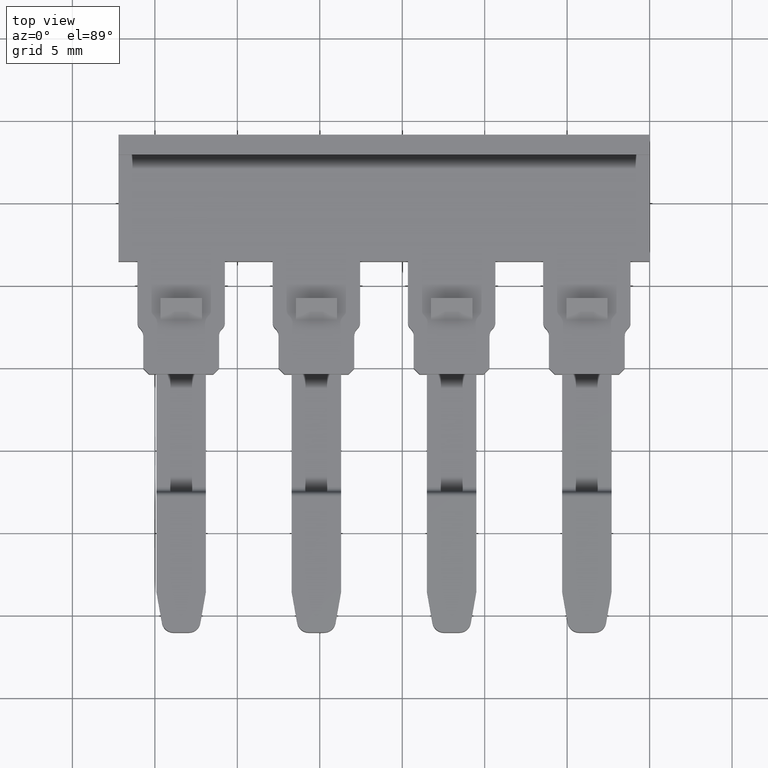
[diagram: clean part render]
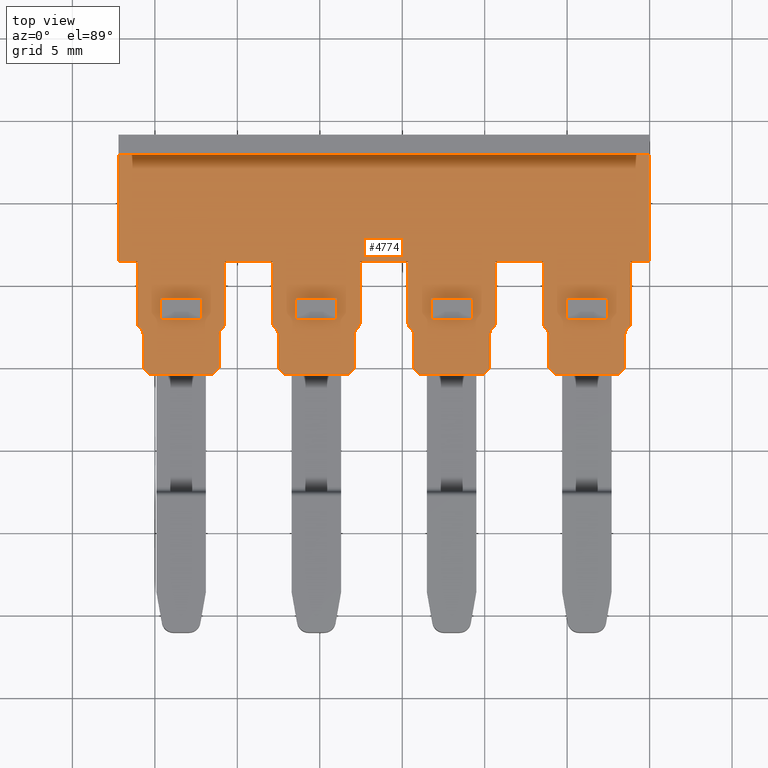
[diagram: same view with one face highlighted and labeled with its STEP entity id]
A machine part, top view. The second image highlights one B-rep face of the part: STEP entity #4774.
In plain terms, the highlighted planar face has unit normal (0, 0, 1).
Its self-contained STEP definition (entity closure, byte-faithful):
#4 = VERTEX_POINT ( 'NONE', #447 ) ;
#7 = VERTEX_POINT ( 'NONE', #437 ) ;
#8 = VERTEX_POINT ( 'NONE', #439 ) ;
#9 = VERTEX_POINT ( 'NONE', #430 ) ;
#10 = VERTEX_POINT ( 'NONE', #388 ) ;
#11 = VERTEX_POINT ( 'NONE', #433 ) ;
#14 = VERTEX_POINT ( 'NONE', #448 ) ;
#17 = VERTEX_POINT ( 'NONE', #440 ) ;
#18 = VERTEX_POINT ( 'NONE', #490 ) ;
#21 = VERTEX_POINT ( 'NONE', #505 ) ;
#22 = VERTEX_POINT ( 'NONE', #482 ) ;
#25 = VERTEX_POINT ( 'NONE', #471 ) ;
#27 = VERTEX_POINT ( 'NONE', #500 ) ;
#28 = VERTEX_POINT ( 'NONE', #466 ) ;
#29 = VERTEX_POINT ( 'NONE', #514 ) ;
#31 = VERTEX_POINT ( 'NONE', #455 ) ;
#32 = VERTEX_POINT ( 'NONE', #486 ) ;
#33 = VERTEX_POINT ( 'NONE', #464 ) ;
#35 = VERTEX_POINT ( 'NONE', #496 ) ;
#36 = VERTEX_POINT ( 'NONE', #487 ) ;
#37 = VERTEX_POINT ( 'NONE', #509 ) ;
#39 = VERTEX_POINT ( 'NONE', #497 ) ;
#40 = VERTEX_POINT ( 'NONE', #475 ) ;
#44 = VERTEX_POINT ( 'NONE', #510 ) ;
#45 = VERTEX_POINT ( 'NONE', #474 ) ;
#46 = VERTEX_POINT ( 'NONE', #507 ) ;
#47 = VERTEX_POINT ( 'NONE', #498 ) ;
#52 = VERTEX_POINT ( 'NONE', #467 ) ;
#53 = VERTEX_POINT ( 'NONE', #457 ) ;
#58 = VERTEX_POINT ( 'NONE', #493 ) ;
#59 = VERTEX_POINT ( 'NONE', #472 ) ;
#61 = VERTEX_POINT ( 'NONE', #488 ) ;
#62 = VERTEX_POINT ( 'NONE', #459 ) ;
#63 = VERTEX_POINT ( 'NONE', #454 ) ;
#65 = VERTEX_POINT ( 'NONE', #489 ) ;
#78 = VERTEX_POINT ( 'NONE', #515 ) ;
#117 = VERTEX_POINT ( 'NONE', #523 ) ;
#280 = EDGE_LOOP ( 'NONE', ( #3942, #3907, #3911, #3933 ) ) ;
#281 = EDGE_LOOP ( 'NONE', ( #3958, #3922, #3919, #3934 ) ) ;
#284 = EDGE_LOOP ( 'NONE', ( #3928, #3902, #3948, #3945 ) ) ;
#290 = EDGE_LOOP ( 'NONE', ( #3930, #3918, #3905, #3943 ) ) ;
#303 = EDGE_LOOP ( 'NONE', ( #3854, #3839, #3832, #3860, #3869, #3887, #3890, #3880, #3834, #3889, #3863, #3898, #3871, #3891, #3916, #3847, #3870, #3914, #3857, #3842, #3954, #3852, #3864, #3883, #3848, #3862, #3949, #3874, #3845, #3851, #3856, #3882, #3892, #3855, #3835, #3877, #3831, #3881, #3895, #3947, #3920, #3940, #3901, #3955, #3950, #3924, #3946, #3932, #3917, #3956, #3910, #3899, #3909, #3937, #3896, #3953, #3926, #3925, #3931, #3906 ) ) ;
#388 = CARTESIAN_POINT ( 'NONE',  ( 1153.494474435155100, 661.9736494821041800, 3.000000000000000000 ) ) ;
#430 = CARTESIAN_POINT ( 'NONE',  ( 1149.944467917465300, 664.2078760720547700, 3.000000000000000000 ) ) ;
#433 = CARTESIAN_POINT ( 'NONE',  ( 1149.944467917465300, 662.9078760720548200, 3.000000000000000400 ) ) ;
#437 = CARTESIAN_POINT ( 'NONE',  ( 1129.040915542681200, 662.3272031070188200, 3.000000000000000000 ) ) ;
#439 = CARTESIAN_POINT ( 'NONE',  ( 1153.640922579462800, 662.3272035023839000, 3.000000000000000000 ) ) ;
#440 = CARTESIAN_POINT ( 'NONE',  ( 1128.894469738309200, 661.9736498846202700, 3.000000000000000000 ) ) ;
#447 = CARTESIAN_POINT ( 'NONE',  ( 1136.044467917465200, 664.2078760720547700, 3.000000000000000000 ) ) ;
#448 = CARTESIAN_POINT ( 'NONE',  ( 1136.044467917465200, 662.9078760720548200, 3.000000000000000000 ) ) ;
#454 = CARTESIAN_POINT ( 'NONE',  ( 1141.744467917465300, 662.9078760720548200, 3.000000000000000400 ) ) ;
#455 = CARTESIAN_POINT ( 'NONE',  ( 1145.498019600217000, 662.3843103491215100, 3.000000000000000000 ) ) ;
#457 = CARTESIAN_POINT ( 'NONE',  ( 1124.148017319408400, 662.3272083212701800, 3.000000000000000000 ) ) ;
#459 = CARTESIAN_POINT ( 'NONE',  ( 1124.644464850728400, 659.6092820011524500, 3.000000000000000000 ) ) ;
#464 = CARTESIAN_POINT ( 'NONE',  ( 1153.698026633855800, 662.3843060446221200, 3.000000000000000000 ) ) ;
#466 = CARTESIAN_POINT ( 'NONE',  ( 1154.994472239529600, 666.4412575163982000, 3.000000000000000000 ) ) ;
#467 = CARTESIAN_POINT ( 'NONE',  ( 1152.444467917465300, 662.9078760720548200, 3.000000000000000400 ) ) ;
#471 = CARTESIAN_POINT ( 'NONE',  ( 1153.494474435155100, 659.9592804752735400, 3.000000000000000400 ) ) ;
#472 = CARTESIAN_POINT ( 'NONE',  ( 1153.844475124394400, 662.7378658222389700, 3.000000000000000000 ) ) ;
#474 = CARTESIAN_POINT ( 'NONE',  ( 1133.544467917465200, 664.2078760720547700, 3.000000000000000000 ) ) ;
#475 = CARTESIAN_POINT ( 'NONE',  ( 1125.344467917465400, 662.9078760720548200, 3.000000000000000400 ) ) ;
#482 = CARTESIAN_POINT ( 'NONE',  ( 1141.744467917465300, 664.2078760720547700, 3.000000000000000000 ) ) ;
#486 = CARTESIAN_POINT ( 'NONE',  ( 1124.294467228829700, 659.9592796230510900, 3.000000000000000400 ) ) ;
#487 = CARTESIAN_POINT ( 'NONE',  ( 1123.944467917465300, 666.4412584401425200, 3.000000000000000400 ) ) ;
#488 = CARTESIAN_POINT ( 'NONE',  ( 1127.844467917465200, 662.9078760720548200, 3.000000000000000000 ) ) ;
#489 = CARTESIAN_POINT ( 'NONE',  ( 1127.844467917465200, 664.2078760720547700, 3.000000000000000000 ) ) ;
#490 = CARTESIAN_POINT ( 'NONE',  ( 1129.098019600217200, 662.3843103491215100, 3.000000000000000000 ) ) ;
#493 = CARTESIAN_POINT ( 'NONE',  ( 1144.244467917465300, 662.9078760720548200, 3.000000000000000000 ) ) ;
#496 = CARTESIAN_POINT ( 'NONE',  ( 1144.244467917465300, 664.2078760720547700, 3.000000000000000000 ) ) ;
#497 = CARTESIAN_POINT ( 'NONE',  ( 1129.244466905616000, 662.7378672810804100, 3.000000000000000000 ) ) ;
#498 = CARTESIAN_POINT ( 'NONE',  ( 1124.090916895879000, 662.3843073119102200, 3.000000000000000000 ) ) ;
#500 = CARTESIAN_POINT ( 'NONE',  ( 1145.644466905616100, 662.7378672810804100, 3.000000000000000000 ) ) ;
#505 = CARTESIAN_POINT ( 'NONE',  ( 1133.544467917465200, 662.9078760720548200, 3.000000000000000400 ) ) ;
#507 = CARTESIAN_POINT ( 'NONE',  ( 1128.894469738309200, 659.9592804752735400, 3.000000000000000400 ) ) ;
#509 = CARTESIAN_POINT ( 'NONE',  ( 1132.348017319408200, 662.3272083212701800, 3.000000000000000000 ) ) ;
#510 = CARTESIAN_POINT ( 'NONE',  ( 1153.844475124394400, 666.4412575163982000, 3.000000000000000400 ) ) ;
#514 = CARTESIAN_POINT ( 'NONE',  ( 1124.294468933274200, 661.9736493991215400, 3.000000000000000000 ) ) ;
#515 = CARTESIAN_POINT ( 'NONE',  ( 1123.944467917441200, 662.7378632849956800, 3.000000000000000000 ) ) ;
#523 = CARTESIAN_POINT ( 'NONE',  ( 1125.344467917465400, 664.2078760720547700, 3.000000000000000000 ) ) ;
#646 = CARTESIAN_POINT ( 'NONE',  ( 1136.744471264188200, 659.6092820011524500, 3.000000000000000000 ) ) ;
#649 = CARTESIAN_POINT ( 'NONE',  ( 1145.294469738309100, 659.9592804752735400, 3.000000000000000400 ) ) ;
#650 = CARTESIAN_POINT ( 'NONE',  ( 1132.144467917441300, 662.7378632849956800, 3.000000000000000000 ) ) ;
#651 = CARTESIAN_POINT ( 'NONE',  ( 1122.794470802330100, 666.4412584401425200, 3.000000000000000000 ) ) ;
#654 = CARTESIAN_POINT ( 'NONE',  ( 1141.044464850728200, 659.6092820011524500, 3.000000000000000000 ) ) ;
#661 = CARTESIAN_POINT ( 'NONE',  ( 1140.344467917465200, 666.4412584401425200, 3.000000000000000000 ) ) ;
#662 = CARTESIAN_POINT ( 'NONE',  ( 1148.544472599332000, 666.4412584401425200, 3.000000000000000400 ) ) ;
#686 = CARTESIAN_POINT ( 'NONE',  ( 1132.144467917465400, 666.4412584401425200, 3.000000000000000400 ) ) ;
#693 = CARTESIAN_POINT ( 'NONE',  ( 1145.440915542681300, 662.3272031070188200, 3.000000000000000000 ) ) ;
#694 = CARTESIAN_POINT ( 'NONE',  ( 1152.444467917465300, 664.2078760720547700, 3.000000000000000400 ) ) ;
#695 = CARTESIAN_POINT ( 'NONE',  ( 1137.444466905616100, 666.4412584401425200, 3.000000000000000400 ) ) ;
#696 = CARTESIAN_POINT ( 'NONE',  ( 1149.244469547574200, 659.6092820011524500, 3.000000000000000000 ) ) ;
#697 = CARTESIAN_POINT ( 'NONE',  ( 1145.644466905616100, 666.4412584401425200, 3.000000000000000400 ) ) ;
#709 = CARTESIAN_POINT ( 'NONE',  ( 1153.144475961034000, 659.6092820011524500, 3.000000000000000000 ) ) ;
#712 = CARTESIAN_POINT ( 'NONE',  ( 1140.694468933274000, 661.9736493991215400, 3.000000000000000000 ) ) ;
#713 = CARTESIAN_POINT ( 'NONE',  ( 1137.240915542681300, 662.3272031070188200, 3.000000000000000000 ) ) ;
#717 = CARTESIAN_POINT ( 'NONE',  ( 1148.544465751977200, 662.7378609136880000, 3.000000000000000000 ) ) ;
#718 = CARTESIAN_POINT ( 'NONE',  ( 1140.490916895879100, 662.3843073119102200, 3.000000000000000000 ) ) ;
#721 = CARTESIAN_POINT ( 'NONE',  ( 1144.944471264188000, 659.6092820011524500, 3.000000000000000000 ) ) ;
#723 = CARTESIAN_POINT ( 'NONE',  ( 1140.694467228829800, 659.9592796230510900, 3.000000000000000400 ) ) ;
#724 = CARTESIAN_POINT ( 'NONE',  ( 1137.298019600217200, 662.3843103491215100, 3.000000000000000000 ) ) ;
#725 = CARTESIAN_POINT ( 'NONE',  ( 1128.544471264188100, 659.6092820011524500, 3.000000000000000000 ) ) ;
#728 = CARTESIAN_POINT ( 'NONE',  ( 1145.294469738309100, 661.9736498846202700, 3.000000000000000000 ) ) ;
#731 = CARTESIAN_POINT ( 'NONE',  ( 1154.994472239529600, 672.9078760720548200, 3.000000000000000000 ) ) ;
#734 = CARTESIAN_POINT ( 'NONE',  ( 1132.494468933274000, 661.9736493991215400, 3.000000000000000000 ) ) ;
#737 = CARTESIAN_POINT ( 'NONE',  ( 1129.244466905616000, 666.4412584401425200, 3.000000000000000400 ) ) ;
#738 = CARTESIAN_POINT ( 'NONE',  ( 1122.794470802330100, 672.9078760720548200, 3.000000000000000000 ) ) ;
#739 = CARTESIAN_POINT ( 'NONE',  ( 1132.494467228829800, 659.9592796230510900, 3.000000000000000400 ) ) ;
#741 = CARTESIAN_POINT ( 'NONE',  ( 1148.894470360060500, 659.9592811886663000, 3.000000000000000400 ) ) ;
#744 = CARTESIAN_POINT ( 'NONE',  ( 1148.690911843030100, 662.3843083557416100, 3.000000000000000000 ) ) ;
#745 = CARTESIAN_POINT ( 'NONE',  ( 1137.444466905616100, 662.7378672810804100, 3.000000000000000000 ) ) ;
#746 = CARTESIAN_POINT ( 'NONE',  ( 1148.894468933274300, 661.9736499820405700, 3.000000000000000000 ) ) ;
#749 = CARTESIAN_POINT ( 'NONE',  ( 1137.094469738309300, 659.9592804752735400, 3.000000000000000400 ) ) ;
#751 = CARTESIAN_POINT ( 'NONE',  ( 1140.548017319408200, 662.3272083212701800, 3.000000000000000000 ) ) ;
#752 = CARTESIAN_POINT ( 'NONE',  ( 1132.844464850728400, 659.6092820011524500, 3.000000000000000000 ) ) ;
#753 = CARTESIAN_POINT ( 'NONE',  ( 1132.290916895879000, 662.3843073119102200, 3.000000000000000000 ) ) ;
#754 = CARTESIAN_POINT ( 'NONE',  ( 1140.344467917441300, 662.7378632849956800, 3.000000000000000000 ) ) ;
#755 = CARTESIAN_POINT ( 'NONE',  ( 1148.748018761588600, 662.3272075669629000, 3.000000000000000000 ) ) ;
#762 = CARTESIAN_POINT ( 'NONE',  ( 1137.094469738309300, 661.9736498846202700, 3.000000000000000000 ) ) ;
#968 = PLANE ( 'NONE',  #4233 ) ;
#982 = DIRECTION ( 'NONE',  ( 1.000000000000000000, 0.0000000000000000000, -0.0000000000000000000 ) ) ;
#994 = FACE_BOUND ( 'NONE', #281, .T. ) ;
#997 = FACE_BOUND ( 'NONE', #280, .T. ) ;
#998 = CARTESIAN_POINT ( 'NONE',  ( 1136.944468391975100, 662.7578638201010800, 3.000000000000000000 ) ) ;
#1004 = FACE_OUTER_BOUND ( 'NONE', #303, .T. ) ;
#1005 = FACE_BOUND ( 'NONE', #290, .T. ) ;
#1009 = FACE_BOUND ( 'NONE', #284, .T. ) ;
#1017 = DIRECTION ( 'NONE',  ( 0.0000000000000000000, 0.0000000000000000000, 1.000000000000000000 ) ) ;
#1236 = VERTEX_POINT ( 'NONE', #650 ) ;
#1237 = VERTEX_POINT ( 'NONE', #686 ) ;
#1238 = VERTEX_POINT ( 'NONE', #694 ) ;
#1239 = VERTEX_POINT ( 'NONE', #649 ) ;
#1241 = VERTEX_POINT ( 'NONE', #693 ) ;
#1242 = VERTEX_POINT ( 'NONE', #695 ) ;
#1243 = VERTEX_POINT ( 'NONE', #696 ) ;
#1244 = VERTEX_POINT ( 'NONE', #697 ) ;
#1246 = VERTEX_POINT ( 'NONE', #646 ) ;
#1247 = VERTEX_POINT ( 'NONE', #654 ) ;
#1248 = VERTEX_POINT ( 'NONE', #661 ) ;
#1249 = VERTEX_POINT ( 'NONE', #651 ) ;
#1250 = VERTEX_POINT ( 'NONE', #662 ) ;
#1252 = VERTEX_POINT ( 'NONE', #751 ) ;
#1253 = VERTEX_POINT ( 'NONE', #762 ) ;
#1255 = VERTEX_POINT ( 'NONE', #755 ) ;
#1256 = VERTEX_POINT ( 'NONE', #709 ) ;
#1261 = VERTEX_POINT ( 'NONE', #721 ) ;
#1264 = VERTEX_POINT ( 'NONE', #738 ) ;
#1265 = VERTEX_POINT ( 'NONE', #728 ) ;
#1266 = VERTEX_POINT ( 'NONE', #717 ) ;
#1267 = VERTEX_POINT ( 'NONE', #724 ) ;
#1268 = VERTEX_POINT ( 'NONE', #754 ) ;
#1269 = VERTEX_POINT ( 'NONE', #718 ) ;
#1270 = VERTEX_POINT ( 'NONE', #712 ) ;
#1271 = VERTEX_POINT ( 'NONE', #734 ) ;
#1272 = VERTEX_POINT ( 'NONE', #737 ) ;
#1273 = VERTEX_POINT ( 'NONE', #741 ) ;
#1277 = VERTEX_POINT ( 'NONE', #746 ) ;
#1279 = VERTEX_POINT ( 'NONE', #731 ) ;
#1283 = VERTEX_POINT ( 'NONE', #744 ) ;
#1285 = VERTEX_POINT ( 'NONE', #749 ) ;
#1286 = VERTEX_POINT ( 'NONE', #752 ) ;
#1287 = VERTEX_POINT ( 'NONE', #723 ) ;
#1288 = VERTEX_POINT ( 'NONE', #745 ) ;
#1289 = VERTEX_POINT ( 'NONE', #725 ) ;
#1290 = VERTEX_POINT ( 'NONE', #713 ) ;
#1292 = VERTEX_POINT ( 'NONE', #739 ) ;
#1294 = VERTEX_POINT ( 'NONE', #753 ) ;
#2374 = DIRECTION ( 'NONE',  ( 0.7071067811865474600, -0.7071067811865474600, 0.0000000000000000000 ) ) ;
#2375 = CARTESIAN_POINT ( 'NONE',  ( 1140.694466376607100, 659.9592804752735400, 3.000000000000000000 ) ) ;
#2378 = CARTESIAN_POINT ( 'NONE',  ( 1136.944468391975100, 672.9078760720548200, 3.000000000000000000 ) ) ;
#2383 = DIRECTION ( 'NONE',  ( -1.000000000000000000, -0.0000000000000000000, 0.0000000000000000000 ) ) ;
#2406 = LINE ( 'NONE', #2378, #4154 ) ;
#2408 = LINE ( 'NONE', #2418, #4157 ) ;
#2415 = DIRECTION ( 'NONE',  ( 0.7071067811865474600, -0.7071067811865474600, 0.0000000000000000000 ) ) ;
#2418 = CARTESIAN_POINT ( 'NONE',  ( 1132.494466376607300, 659.9592804752735400, 3.000000000000000000 ) ) ;
#2419 = LINE ( 'NONE', #2375, #4260 ) ;
#2526 = CARTESIAN_POINT ( 'NONE',  ( 1132.290914677786500, 662.3843095299471300, 3.000000000000000000 ) ) ;
#2549 = CARTESIAN_POINT ( 'NONE',  ( 1137.444466905616100, 662.7578707420599400, 3.000000000000000000 ) ) ;
#2551 = CARTESIAN_POINT ( 'NONE',  ( 1131.994468426628400, 661.9736497164254800, 3.000000000000000000 ) ) ;
#2555 = LINE ( 'NONE', #2570, #4346 ) ;
#2562 = DIRECTION ( 'NONE',  ( 0.0000000000000000000, 1.000000000000000000, -0.0000000000000000000 ) ) ;
#2563 = LINE ( 'NONE', #2526, #4329 ) ;
#2564 = DIRECTION ( 'NONE',  ( -1.000000000000000000, 0.0000000000000000000, 0.0000000000000000000 ) ) ;
#2565 = DIRECTION ( 'NONE',  ( -0.0000000000000000000, -0.0000000000000000000, -1.000000000000000000 ) ) ;
#2570 = CARTESIAN_POINT ( 'NONE',  ( 1158.234848447492800, 659.6092820011524500, 3.000000000000000000 ) ) ;
#2571 = LINE ( 'NONE', #2549, #4253 ) ;
#2574 = DIRECTION ( 'NONE',  ( -1.000000000000000000, -1.259332280444392000E-037, -2.956436511251547900E-061 ) ) ;
#2578 = LINE ( 'NONE', #2603, #4343 ) ;
#2582 = DIRECTION ( 'NONE',  ( -1.000000000000000000, 0.0000000000000000000, 0.0000000000000000000 ) ) ;
#2595 = CARTESIAN_POINT ( 'NONE',  ( 1140.844468432835100, 662.7378632849956800, 3.000000000000000000 ) ) ;
#2603 = CARTESIAN_POINT ( 'NONE',  ( 1145.440915542681300, 662.3272031070188200, 3.000000000000000000 ) ) ;
#2605 = DIRECTION ( 'NONE',  ( 0.0000000000000000000, 0.0000000000000000000, 1.000000000000000000 ) ) ;
#2608 = DIRECTION ( 'NONE',  ( 0.7071156533801817900, -0.7070979088815909600, -0.0000000000000000000 ) ) ;
#2619 = DIRECTION ( 'NONE',  ( 0.7070870645724811600, 0.7071264972508609600, -0.0000000000000000000 ) ) ;
#2648 = CARTESIAN_POINT ( 'NONE',  ( 1140.344472599332200, 666.4412584401425200, 3.000000000000000000 ) ) ;
#2652 = CARTESIAN_POINT ( 'NONE',  ( 1122.794470802330100, 666.4412584401425200, 3.000000000000000000 ) ) ;
#2654 = DIRECTION ( 'NONE',  ( -0.0000000000000000000, -1.000000000000000000, -0.0000000000000000000 ) ) ;
#2659 = LINE ( 'NONE', #2676, #4368 ) ;
#2661 = DIRECTION ( 'NONE',  ( -0.0000000000000000000, -1.000000000000000000, -0.0000000000000000000 ) ) ;
#2664 = DIRECTION ( 'NONE',  ( 1.000000000000000000, 0.0000000000000000000, -0.0000000000000000000 ) ) ;
#2665 = LINE ( 'NONE', #2670, #4366 ) ;
#2666 = LINE ( 'NONE', #2652, #4359 ) ;
#2670 = CARTESIAN_POINT ( 'NONE',  ( 1124.090914677786500, 662.3843095299471300, 3.000000000000000000 ) ) ;
#2674 = LINE ( 'NONE', #2648, #4312 ) ;
#2676 = CARTESIAN_POINT ( 'NONE',  ( 1125.344467917465400, 662.9078760720548200, 3.000000000000000400 ) ) ;
#2677 = DIRECTION ( 'NONE',  ( 0.7071156533801817900, -0.7070979088815909600, -0.0000000000000000000 ) ) ;
#2678 = LINE ( 'NONE', #2681, #4341 ) ;
#2679 = DIRECTION ( 'NONE',  ( 0.7071156533801817900, -0.7070979088815909600, -0.0000000000000000000 ) ) ;
#2680 = DIRECTION ( 'NONE',  ( -1.000000000000000000, 0.0000000000000000000, 0.0000000000000000000 ) ) ;
#2681 = CARTESIAN_POINT ( 'NONE',  ( 1136.744471264188200, 659.6092820011524500, 3.000000000000000000 ) ) ;
#2682 = CARTESIAN_POINT ( 'NONE',  ( 1129.040915542681200, 662.3272031070188200, 3.000000000000000000 ) ) ;
#2684 = DIRECTION ( 'NONE',  ( -0.0000000000000000000, -1.000000000000000000, -0.0000000000000000000 ) ) ;
#2686 = CARTESIAN_POINT ( 'NONE',  ( 1152.444467917465300, 664.2078760720547700, 3.000000000000000400 ) ) ;
#2688 = LINE ( 'NONE', #2702, #4377 ) ;
#2691 = DIRECTION ( 'NONE',  ( -1.000000000000000000, 0.0000000000000000000, 0.0000000000000000000 ) ) ;
#2692 = LINE ( 'NONE', #2708, #4370 ) ;
#2693 = LINE ( 'NONE', #2696, #4420 ) ;
#2694 = DIRECTION ( 'NONE',  ( -1.000000000000000000, 0.0000000000000000000, 0.0000000000000000000 ) ) ;
#2695 = DIRECTION ( 'NONE',  ( -0.0000000000000000000, -0.0000000000000000000, -1.000000000000000000 ) ) ;
#2696 = CARTESIAN_POINT ( 'NONE',  ( 1136.944468391975100, 666.4412584401425200, 3.000000000000000000 ) ) ;
#2697 = LINE ( 'NONE', #2706, #4320 ) ;
#2698 = LINE ( 'NONE', #2718, #4378 ) ;
#2699 = LINE ( 'NONE', #2682, #4340 ) ;
#2701 = LINE ( 'NONE', #2686, #4355 ) ;
#2702 = CARTESIAN_POINT ( 'NONE',  ( 1141.744467917465300, 662.9078760720548200, 3.000000000000000400 ) ) ;
#2703 = CARTESIAN_POINT ( 'NONE',  ( 1148.544465770546100, 662.7578673721997100, 3.000000000000000000 ) ) ;
#2704 = CARTESIAN_POINT ( 'NONE',  ( 1145.794469738307500, 661.9736505214604000, 3.000000000000000000 ) ) ;
#2705 = DIRECTION ( 'NONE',  ( -0.0000000000000000000, -0.0000000000000000000, -1.000000000000000000 ) ) ;
#2706 = CARTESIAN_POINT ( 'NONE',  ( 1140.344467917465200, 666.4412584401425200, 3.000000000000000000 ) ) ;
#2707 = LINE ( 'NONE', #2703, #4367 ) ;
#2708 = CARTESIAN_POINT ( 'NONE',  ( 1148.894471073453100, 659.9592804752735400, 3.000000000000000000 ) ) ;
#2709 = DIRECTION ( 'NONE',  ( 0.7071067811865474600, -0.7071067811865474600, 0.0000000000000000000 ) ) ;
#2710 = LINE ( 'NONE', #2724, #4390 ) ;
#2711 = DIRECTION ( 'NONE',  ( 0.7071067811865474600, 0.7071067811865474600, 0.0000000000000000000 ) ) ;
#2714 = DIRECTION ( 'NONE',  ( 0.7070870645724811600, 0.7071264972508609600, -0.0000000000000000000 ) ) ;
#2716 = DIRECTION ( 'NONE',  ( -1.853939984963251300E-006, -0.9999999999982813700, -0.0000000000000000000 ) ) ;
#2717 = CARTESIAN_POINT ( 'NONE',  ( 1123.794468426628300, 661.9736497164254800, 3.000000000000000000 ) ) ;
#2718 = CARTESIAN_POINT ( 'NONE',  ( 1153.698028993211400, 662.3843084039157200, 3.000000000000000000 ) ) ;
#2720 = DIRECTION ( 'NONE',  ( 0.7071161435833248600, 0.7070974186658064400, -0.0000000000000000000 ) ) ;
#2724 = CARTESIAN_POINT ( 'NONE',  ( 1140.490914677786300, 662.3843095299471300, 3.000000000000000000 ) ) ;
#2726 = LINE ( 'NONE', #2727, #4391 ) ;
#2727 = CARTESIAN_POINT ( 'NONE',  ( 1144.944471264188000, 659.6092820011524500, 3.000000000000000000 ) ) ;
#2730 = CARTESIAN_POINT ( 'NONE',  ( 1148.544472599332000, 666.4412584401425200, 3.000000000000000000 ) ) ;
#2731 = DIRECTION ( 'NONE',  ( 0.7071067811865474600, 0.7071067811865474600, 0.0000000000000000000 ) ) ;
#2733 = LINE ( 'NONE', #2737, #4374 ) ;
#2736 = DIRECTION ( 'NONE',  ( -1.000000000000000000, 0.0000000000000000000, 0.0000000000000000000 ) ) ;
#2737 = CARTESIAN_POINT ( 'NONE',  ( 1150.034848447493000, 659.6092820011524500, 3.000000000000000000 ) ) ;
#2739 = CARTESIAN_POINT ( 'NONE',  ( 1153.344472601745100, 662.7378623612644300, 3.000000000000000000 ) ) ;
#2742 = LINE ( 'NONE', #2730, #4407 ) ;
#2743 = DIRECTION ( 'NONE',  ( 1.000000000000000000, 0.0000000000000000000, -0.0000000000000000000 ) ) ;
#2745 = DIRECTION ( 'NONE',  ( -1.000000000000000000, -1.259332280444392000E-037, -2.956436511251547900E-061 ) ) ;
#2746 = CARTESIAN_POINT ( 'NONE',  ( 1140.194468426628200, 661.9736497164254800, 3.000000000000000000 ) ) ;
#2748 = DIRECTION ( 'NONE',  ( -1.000000000000000000, 0.0000000000000000000, 0.0000000000000000000 ) ) ;
#2749 = DIRECTION ( 'NONE',  ( -0.0000000000000000000, -0.0000000000000000000, -1.000000000000000000 ) ) ;
#2750 = DIRECTION ( 'NONE',  ( 1.000000000000000000, 0.0000000000000000000, -0.0000000000000000000 ) ) ;
#2751 = DIRECTION ( 'NONE',  ( -1.000000000000000000, 0.0000000000000000000, 0.0000000000000000000 ) ) ;
#2752 = CARTESIAN_POINT ( 'NONE',  ( 1145.144468391975100, 662.7378638201009800, 3.000000000000000000 ) ) ;
#2753 = LINE ( 'NONE', #2763, #4389 ) ;
#2754 = DIRECTION ( 'NONE',  ( -1.000000000000000000, -1.259332280444392000E-037, -2.956436511251547900E-061 ) ) ;
#2755 = DIRECTION ( 'NONE',  ( 0.0000000000000000000, 0.0000000000000000000, 1.000000000000000000 ) ) ;
#2756 = DIRECTION ( 'NONE',  ( -1.000000000000000000, 0.0000000000000000000, 0.0000000000000000000 ) ) ;
#2758 = CARTESIAN_POINT ( 'NONE',  ( 1158.234848447492800, 659.6092820011524500, 3.000000000000000000 ) ) ;
#2759 = DIRECTION ( 'NONE',  ( 0.0000000000000000000, 0.0000000000000000000, 1.000000000000000000 ) ) ;
#2760 = LINE ( 'NONE', #2758, #4414 ) ;
#2763 = CARTESIAN_POINT ( 'NONE',  ( 1154.994472239529600, 674.1078760720547500, 3.000000000000000000 ) ) ;
#2764 = CARTESIAN_POINT ( 'NONE',  ( 1136.944468391975100, 662.7378638201009800, 3.000000000000000000 ) ) ;
#2765 = DIRECTION ( 'NONE',  ( -0.0000000000000000000, -1.000000000000000000, -0.0000000000000000000 ) ) ;
#2766 = DIRECTION ( 'NONE',  ( 0.0000000000000000000, 0.0000000000000000000, 1.000000000000000000 ) ) ;
#2768 = DIRECTION ( 'NONE',  ( 0.0000000000000000000, 1.000000000000000000, -0.0000000000000000000 ) ) ;
#2769 = DIRECTION ( 'NONE',  ( -0.0000000000000000000, -1.000000000000000000, -0.0000000000000000000 ) ) ;
#2770 = LINE ( 'NONE', #2777, #4419 ) ;
#2771 = DIRECTION ( 'NONE',  ( -1.000000000000000000, 0.0000000000000000000, 0.0000000000000000000 ) ) ;
#2772 = LINE ( 'NONE', #2774, #4381 ) ;
#2774 = CARTESIAN_POINT ( 'NONE',  ( 1132.494468933274400, 661.9736497164254800, 3.000000000000000000 ) ) ;
#2775 = DIRECTION ( 'NONE',  ( -1.269214834134032900E-006, -0.9999999999991945300, -0.0000000000000000000 ) ) ;
#2776 = CARTESIAN_POINT ( 'NONE',  ( 1148.748018761588600, 662.3272075669629000, 3.000000000000000000 ) ) ;
#2777 = CARTESIAN_POINT ( 'NONE',  ( 1136.044467917465200, 662.9078760720548200, 3.000000000000000400 ) ) ;
#2778 = DIRECTION ( 'NONE',  ( 0.0000000000000000000, 1.000000000000000000, -0.0000000000000000000 ) ) ;
#2779 = CARTESIAN_POINT ( 'NONE',  ( 1136.044467917465200, 662.9078760720548200, 3.000000000000000400 ) ) ;
#2780 = LINE ( 'NONE', #2814, #4423 ) ;
#2781 = CARTESIAN_POINT ( 'NONE',  ( 1145.294469738309100, 659.9592804752735400, 3.000000000000000000 ) ) ;
#2783 = LINE ( 'NONE', #2781, #4422 ) ;
#2784 = LINE ( 'NONE', #2779, #4385 ) ;
#2785 = DIRECTION ( 'NONE',  ( 0.0000000000000000000, 1.000000000000000000, -0.0000000000000000000 ) ) ;
#2786 = LINE ( 'NONE', #2790, #4428 ) ;
#2787 = DIRECTION ( 'NONE',  ( 0.7071447321500710100, -0.7070688281860574300, -0.0000000000000000000 ) ) ;
#2790 = CARTESIAN_POINT ( 'NONE',  ( 1128.894469738309200, 659.9592804752735400, 3.000000000000000000 ) ) ;
#2791 = CARTESIAN_POINT ( 'NONE',  ( 1137.094469738309300, 659.9592804752735400, 3.000000000000000000 ) ) ;
#2792 = LINE ( 'NONE', #2791, #4415 ) ;
#2793 = DIRECTION ( 'NONE',  ( 0.0000000000000000000, 1.000000000000000000, -0.0000000000000000000 ) ) ;
#2795 = LINE ( 'NONE', #2776, #4384 ) ;
#2796 = LINE ( 'NONE', #2819, #4410 ) ;
#2798 = LINE ( 'NONE', #2807, #4403 ) ;
#2799 = DIRECTION ( 'NONE',  ( 0.0000000000000000000, 0.0000000000000000000, 1.000000000000000000 ) ) ;
#2802 = CARTESIAN_POINT ( 'NONE',  ( 1132.644468432835100, 662.7378632849956800, 3.000000000000000000 ) ) ;
#2804 = DIRECTION ( 'NONE',  ( 0.0000000000000000000, 1.000000000000000000, -0.0000000000000000000 ) ) ;
#2805 = LINE ( 'NONE', #2812, #4402 ) ;
#2806 = DIRECTION ( 'NONE',  ( 0.0000000000000000000, 0.0000000000000000000, 1.000000000000000000 ) ) ;
#2807 = CARTESIAN_POINT ( 'NONE',  ( 1140.694468933274500, 661.9736497164254800, 3.000000000000000000 ) ) ;
#2811 = DIRECTION ( 'NONE',  ( -1.269214834134032900E-006, -0.9999999999991945300, -0.0000000000000000000 ) ) ;
#2812 = CARTESIAN_POINT ( 'NONE',  ( 1137.240915542681300, 662.3272031070188200, 3.000000000000000000 ) ) ;
#2813 = DIRECTION ( 'NONE',  ( -0.0000000000000000000, -0.0000000000000000000, -1.000000000000000000 ) ) ;
#2814 = CARTESIAN_POINT ( 'NONE',  ( 1132.144467917465400, 666.4412584401425200, 3.000000000000000000 ) ) ;
#2815 = DIRECTION ( 'NONE',  ( -0.0000000000000000000, -1.000000000000000000, -0.0000000000000000000 ) ) ;
#2816 = LINE ( 'NONE', #2832, #4408 ) ;
#2818 = LINE ( 'NONE', #2821, #4412 ) ;
#2819 = CARTESIAN_POINT ( 'NONE',  ( 1153.144475961034000, 659.6092820011524500, 3.000000000000000000 ) ) ;
#2820 = DIRECTION ( 'NONE',  ( 0.7071067811865474600, 0.7071067811865474600, 0.0000000000000000000 ) ) ;
#2821 = CARTESIAN_POINT ( 'NONE',  ( 1153.844475124394400, 666.4412575163982000, 3.000000000000000000 ) ) ;
#2822 = CARTESIAN_POINT ( 'NONE',  ( 1153.994471684214700, 661.9736497164279900, 3.000000000000000000 ) ) ;
#2824 = DIRECTION ( 'NONE',  ( 0.0000000000000000000, 0.0000000000000000000, 1.000000000000000000 ) ) ;
#2825 = DIRECTION ( 'NONE',  ( -1.000000000000000000, 0.0000000000000000000, 0.0000000000000000000 ) ) ;
#2826 = DIRECTION ( 'NONE',  ( -1.000000000000000000, -2.220454189456208500E-013, 0.0000000000000000000 ) ) ;
#2828 = DIRECTION ( 'NONE',  ( 0.7070870645724811600, 0.7071264972508609600, -0.0000000000000000000 ) ) ;
#2829 = DIRECTION ( 'NONE',  ( 0.0000000000000000000, 1.000000000000000000, -0.0000000000000000000 ) ) ;
#2831 = DIRECTION ( 'NONE',  ( -1.000000000000000000, 0.0000000000000000000, 0.0000000000000000000 ) ) ;
#2832 = CARTESIAN_POINT ( 'NONE',  ( 1145.644466905616100, 662.7578707420599400, 3.000000000000000000 ) ) ;
#2833 = CARTESIAN_POINT ( 'NONE',  ( 1128.744468391975300, 662.7378638201009800, 3.000000000000000000 ) ) ;
#2834 = DIRECTION ( 'NONE',  ( -1.000000000000000000, 0.0000000000000000000, 0.0000000000000000000 ) ) ;
#2836 = LINE ( 'NONE', #2845, #4427 ) ;
#2837 = CARTESIAN_POINT ( 'NONE',  ( 1149.044463937493400, 662.7378604502047200, 3.000000000000000000 ) ) ;
#2839 = DIRECTION ( 'NONE',  ( -1.000000000000000000, 0.0000000000000000000, 0.0000000000000000000 ) ) ;
#2840 = CARTESIAN_POINT ( 'NONE',  ( 1153.494474435155100, 661.9736492477802600, 3.000000000000000000 ) ) ;
#2841 = DIRECTION ( 'NONE',  ( -1.000000000000000000, 0.0000000000000000000, 0.0000000000000000000 ) ) ;
#2842 = CARTESIAN_POINT ( 'NONE',  ( 1148.394466766061700, 661.9736497164254800, 3.000000000000000000 ) ) ;
#2844 = DIRECTION ( 'NONE',  ( -1.000000000000000000, 0.0000000000000000000, 0.0000000000000000000 ) ) ;
#2845 = CARTESIAN_POINT ( 'NONE',  ( 1148.894471073453100, 659.9592804752735400, 3.000000000000000000 ) ) ;
#2847 = DIRECTION ( 'NONE',  ( 1.000000000000000000, 0.0000000000000000000, -0.0000000000000000000 ) ) ;
#2849 = LINE ( 'NONE', #2872, #4453 ) ;
#2850 = LINE ( 'NONE', #2855, #4376 ) ;
#2853 = DIRECTION ( 'NONE',  ( 1.062455896942234500E-006, -0.9999999999994355600, -0.0000000000000000000 ) ) ;
#2854 = DIRECTION ( 'NONE',  ( -0.0000000000000000000, -0.0000000000000000000, -1.000000000000000000 ) ) ;
#2855 = CARTESIAN_POINT ( 'NONE',  ( 1144.244467917465300, 662.9078760720548200, 3.000000000000000400 ) ) ;
#2856 = DIRECTION ( 'NONE',  ( 0.0000000000000000000, 1.000000000000000000, -0.0000000000000000000 ) ) ;
#2859 = DIRECTION ( 'NONE',  ( -1.000000000000000000, 0.0000000000000000000, 0.0000000000000000000 ) ) ;
#2860 = CARTESIAN_POINT ( 'NONE',  ( 1145.144468391975100, 666.4412575163982000, 3.000000000000000000 ) ) ;
#2863 = LINE ( 'NONE', #2840, #4426 ) ;
#2864 = DIRECTION ( 'NONE',  ( -0.0000000000000000000, -0.0000000000000000000, -1.000000000000000000 ) ) ;
#2866 = LINE ( 'NONE', #2879, #4373 ) ;
#2867 = LINE ( 'NONE', #2860, #4416 ) ;
#2869 = DIRECTION ( 'NONE',  ( -1.000000000000000000, 0.0000000000000000000, 0.0000000000000000000 ) ) ;
#2870 = DIRECTION ( 'NONE',  ( 0.0000000000000000000, 0.0000000000000000000, 1.000000000000000000 ) ) ;
#2872 = CARTESIAN_POINT ( 'NONE',  ( 1144.244467917465300, 662.9078760720548200, 3.000000000000000400 ) ) ;
#2876 = LINE ( 'NONE', #2878, #4451 ) ;
#2878 = CARTESIAN_POINT ( 'NONE',  ( 1124.294468933274600, 661.9736497164254800, 3.000000000000000000 ) ) ;
#2879 = CARTESIAN_POINT ( 'NONE',  ( 1152.444467917465300, 662.9078760720548200, 3.000000000000000400 ) ) ;
#2880 = DIRECTION ( 'NONE',  ( -1.269214834134032900E-006, -0.9999999999991945300, -0.0000000000000000000 ) ) ;
#2881 = CARTESIAN_POINT ( 'NONE',  ( 1137.594469738307700, 661.9736505214604000, 3.000000000000000000 ) ) ;
#2883 = DIRECTION ( 'NONE',  ( -0.0000000000000000000, -1.000000000000000000, -0.0000000000000000000 ) ) ;
#2884 = CARTESIAN_POINT ( 'NONE',  ( 1124.444468432835300, 662.7378632849956800, 3.000000000000000000 ) ) ;
#2886 = DIRECTION ( 'NONE',  ( -1.000000000000000000, -1.259332280444392000E-037, -2.956436511251547900E-061 ) ) ;
#2887 = LINE ( 'NONE', #2894, #4446 ) ;
#2888 = CARTESIAN_POINT ( 'NONE',  ( 1128.744468391975300, 666.4412584401425200, 3.000000000000000000 ) ) ;
#2891 = DIRECTION ( 'NONE',  ( 1.000000000000000000, 0.0000000000000000000, -0.0000000000000000000 ) ) ;
#2892 = LINE ( 'NONE', #2902, #4443 ) ;
#2894 = CARTESIAN_POINT ( 'NONE',  ( 1136.044467917465200, 664.2078760720547700, 3.000000000000000400 ) ) ;
#2897 = LINE ( 'NONE', #2926, #4444 ) ;
#2900 = DIRECTION ( 'NONE',  ( -0.0000000000000000000, -1.000000000000000000, -0.0000000000000000000 ) ) ;
#2902 = CARTESIAN_POINT ( 'NONE',  ( 1127.844467917465200, 664.2078760720547700, 3.000000000000000400 ) ) ;
#2905 = LINE ( 'NONE', #2927, #4489 ) ;
#2906 = CARTESIAN_POINT ( 'NONE',  ( 1123.944467917465300, 666.4412584401425200, 3.000000000000000000 ) ) ;
#2908 = DIRECTION ( 'NONE',  ( -1.000000000000000000, 0.0000000000000000000, 0.0000000000000000000 ) ) ;
#2911 = LINE ( 'NONE', #2888, #4483 ) ;
#2914 = DIRECTION ( 'NONE',  ( -1.000000000000000000, 0.0000000000000000000, 0.0000000000000000000 ) ) ;
#2922 = DIRECTION ( 'NONE',  ( 0.0000000000000000000, 1.000000000000000000, -0.0000000000000000000 ) ) ;
#2926 = CARTESIAN_POINT ( 'NONE',  ( 1141.834848447493000, 659.6092820011524500, 3.000000000000000000 ) ) ;
#2927 = CARTESIAN_POINT ( 'NONE',  ( 1129.244466905616000, 662.7578707420599400, 3.000000000000000000 ) ) ;
#2930 = LINE ( 'NONE', #2906, #4487 ) ;
#2938 = LINE ( 'NONE', #2943, #4438 ) ;
#2943 = CARTESIAN_POINT ( 'NONE',  ( 1144.244467917465300, 664.2078760720547700, 3.000000000000000400 ) ) ;
#2944 = CARTESIAN_POINT ( 'NONE',  ( 1127.844467917465200, 662.9078760720548200, 3.000000000000000400 ) ) ;
#2945 = LINE ( 'NONE', #2944, #4488 ) ;
#2946 = CARTESIAN_POINT ( 'NONE',  ( 1149.944467917465300, 662.9078760720548200, 3.000000000000000400 ) ) ;
#2954 = DIRECTION ( 'NONE',  ( 0.7071067811865474600, -0.7071067811865474600, 0.0000000000000000000 ) ) ;
#2957 = DIRECTION ( 'NONE',  ( -1.000000000000000000, 0.0000000000000000000, 0.0000000000000000000 ) ) ;
#2959 = LINE ( 'NONE', #2946, #4463 ) ;
#2961 = LINE ( 'NONE', #2971, #4492 ) ;
#2969 = DIRECTION ( 'NONE',  ( -0.0000000000000000000, -1.000000000000000000, -0.0000000000000000000 ) ) ;
#2970 = CARTESIAN_POINT ( 'NONE',  ( 1129.394469738307600, 661.9736505214604000, 3.000000000000000000 ) ) ;
#2971 = CARTESIAN_POINT ( 'NONE',  ( 1124.294466376607300, 659.9592804752735400, 3.000000000000000000 ) ) ;
#2974 = DIRECTION ( 'NONE',  ( -1.000000000000000000, 0.0000000000000000000, 0.0000000000000000000 ) ) ;
#2975 = DIRECTION ( 'NONE',  ( -0.0000000000000000000, -0.0000000000000000000, -1.000000000000000000 ) ) ;
#2976 = DIRECTION ( 'NONE',  ( -1.000000000000000000, 0.0000000000000000000, 0.0000000000000000000 ) ) ;
#2977 = LINE ( 'NONE', #2981, #4481 ) ;
#2980 = LINE ( 'NONE', #2983, #4543 ) ;
#2981 = CARTESIAN_POINT ( 'NONE',  ( 1127.844467917465200, 662.9078760720548200, 3.000000000000000400 ) ) ;
#2983 = CARTESIAN_POINT ( 'NONE',  ( 1133.544467917465200, 662.9078760720548200, 3.000000000000000400 ) ) ;
#2985 = LINE ( 'NONE', #3015, #4433 ) ;
#2995 = DIRECTION ( 'NONE',  ( -0.0000000000000000000, -1.000000000000000000, -0.0000000000000000000 ) ) ;
#3006 = DIRECTION ( 'NONE',  ( -0.0000000000000000000, -1.000000000000000000, -0.0000000000000000000 ) ) ;
#3015 = CARTESIAN_POINT ( 'NONE',  ( 1152.444467917465300, 662.9078760720548200, 3.000000000000000400 ) ) ;
#3031 = DIRECTION ( 'NONE',  ( 0.7071067811865474600, 0.7071067811865474600, 0.0000000000000000000 ) ) ;
#3050 = LINE ( 'NONE', #3051, #4497 ) ;
#3051 = CARTESIAN_POINT ( 'NONE',  ( 1128.544471264188100, 659.6092820011524500, 3.000000000000000000 ) ) ;
#3059 = DIRECTION ( 'NONE',  ( -0.0000000000000000000, -1.000000000000000000, -0.0000000000000000000 ) ) ;
#3831 = ORIENTED_EDGE ( 'NONE', *, *, #4978, .T. ) ;
#3832 = ORIENTED_EDGE ( 'NONE', *, *, #4973, .T. ) ;
#3834 = ORIENTED_EDGE ( 'NONE', *, *, #4929, .T. ) ;
#3835 = ORIENTED_EDGE ( 'NONE', *, *, #4941, .T. ) ;
#3839 = ORIENTED_EDGE ( 'NONE', *, *, #4972, .T. ) ;
#3842 = ORIENTED_EDGE ( 'NONE', *, *, #4977, .T. ) ;
#3845 = ORIENTED_EDGE ( 'NONE', *, *, #4946, .T. ) ;
#3847 = ORIENTED_EDGE ( 'NONE', *, *, #4938, .T. ) ;
#3848 = ORIENTED_EDGE ( 'NONE', *, *, #4937, .T. ) ;
#3851 = ORIENTED_EDGE ( 'NONE', *, *, #4939, .T. ) ;
#3852 = ORIENTED_EDGE ( 'NONE', *, *, #4904, .F. ) ;
#3854 = ORIENTED_EDGE ( 'NONE', *, *, #4948, .T. ) ;
#3855 = ORIENTED_EDGE ( 'NONE', *, *, #4984, .T. ) ;
#3856 = ORIENTED_EDGE ( 'NONE', *, *, #4971, .T. ) ;
#3857 = ORIENTED_EDGE ( 'NONE', *, *, #4955, .T. ) ;
#3860 = ORIENTED_EDGE ( 'NONE', *, *, #4905, .T. ) ;
#3862 = ORIENTED_EDGE ( 'NONE', *, *, #4906, .T. ) ;
#3863 = ORIENTED_EDGE ( 'NONE', *, *, #4982, .T. ) ;
#3864 = ORIENTED_EDGE ( 'NONE', *, *, #4945, .T. ) ;
#3869 = ORIENTED_EDGE ( 'NONE', *, *, #4903, .T. ) ;
#3870 = ORIENTED_EDGE ( 'NONE', *, *, #4912, .T. ) ;
#3871 = ORIENTED_EDGE ( 'NONE', *, *, #4950, .T. ) ;
#3874 = ORIENTED_EDGE ( 'NONE', *, *, #4969, .T. ) ;
#3877 = ORIENTED_EDGE ( 'NONE', *, *, #4951, .F. ) ;
#3880 = ORIENTED_EDGE ( 'NONE', *, *, #4953, .F. ) ;
#3881 = ORIENTED_EDGE ( 'NONE', *, *, #4985, .T. ) ;
#3882 = ORIENTED_EDGE ( 'NONE', *, *, #4964, .T. ) ;
#3883 = ORIENTED_EDGE ( 'NONE', *, *, #4961, .T. ) ;
#3887 = ORIENTED_EDGE ( 'NONE', *, *, #4962, .T. ) ;
#3889 = ORIENTED_EDGE ( 'NONE', *, *, #4963, .T. ) ;
#3890 = ORIENTED_EDGE ( 'NONE', *, *, #4863, .T. ) ;
#3891 = ORIENTED_EDGE ( 'NONE', *, *, #4900, .T. ) ;
#3892 = ORIENTED_EDGE ( 'NONE', *, *, #4983, .T. ) ;
#3895 = ORIENTED_EDGE ( 'NONE', *, *, #4979, .T. ) ;
#3896 = ORIENTED_EDGE ( 'NONE', *, *, #5048, .T. ) ;
#3898 = ORIENTED_EDGE ( 'NONE', *, *, #4975, .T. ) ;
#3899 = ORIENTED_EDGE ( 'NONE', *, *, #4996, .T. ) ;
#3901 = ORIENTED_EDGE ( 'NONE', *, *, #4989, .T. ) ;
#3902 = ORIENTED_EDGE ( 'NONE', *, *, #4966, .T. ) ;
#3905 = ORIENTED_EDGE ( 'NONE', *, *, #4987, .T. ) ;
#3906 = ORIENTED_EDGE ( 'NONE', *, *, #4999, .T. ) ;
#3907 = ORIENTED_EDGE ( 'NONE', *, *, #4992, .T. ) ;
#3909 = ORIENTED_EDGE ( 'NONE', *, *, #5022, .T. ) ;
#3910 = ORIENTED_EDGE ( 'NONE', *, *, #4936, .T. ) ;
#3911 = ORIENTED_EDGE ( 'NONE', *, *, #5013, .F. ) ;
#3914 = ORIENTED_EDGE ( 'NONE', *, *, #4942, .T. ) ;
#3916 = ORIENTED_EDGE ( 'NONE', *, *, #4927, .T. ) ;
#3917 = ORIENTED_EDGE ( 'NONE', *, *, #4991, .T. ) ;
#3918 = ORIENTED_EDGE ( 'NONE', *, *, #4994, .T. ) ;
#3919 = ORIENTED_EDGE ( 'NONE', *, *, #5020, .T. ) ;
#3920 = ORIENTED_EDGE ( 'NONE', *, *, #4947, .T. ) ;
#3922 = ORIENTED_EDGE ( 'NONE', *, *, #5028, .T. ) ;
#3924 = ORIENTED_EDGE ( 'NONE', *, *, #4925, .T. ) ;
#3925 = ORIENTED_EDGE ( 'NONE', *, *, #4931, .T. ) ;
#3926 = ORIENTED_EDGE ( 'NONE', *, *, #5026, .T. ) ;
#3928 = ORIENTED_EDGE ( 'NONE', *, *, #5000, .F. ) ;
#3930 = ORIENTED_EDGE ( 'NONE', *, *, #5016, .F. ) ;
#3931 = ORIENTED_EDGE ( 'NONE', *, *, #4980, .T. ) ;
#3932 = ORIENTED_EDGE ( 'NONE', *, *, #5005, .T. ) ;
#3933 = ORIENTED_EDGE ( 'NONE', *, *, #4932, .F. ) ;
#3934 = ORIENTED_EDGE ( 'NONE', *, *, #4926, .F. ) ;
#3937 = ORIENTED_EDGE ( 'NONE', *, *, #5010, .F. ) ;
#3940 = ORIENTED_EDGE ( 'NONE', *, *, #4981, .T. ) ;
#3942 = ORIENTED_EDGE ( 'NONE', *, *, #5030, .T. ) ;
#3943 = ORIENTED_EDGE ( 'NONE', *, *, #4944, .F. ) ;
#3945 = ORIENTED_EDGE ( 'NONE', *, *, #5052, .F. ) ;
#3946 = ORIENTED_EDGE ( 'NONE', *, *, #5012, .T. ) ;
#3947 = ORIENTED_EDGE ( 'NONE', *, *, #4943, .T. ) ;
#3948 = ORIENTED_EDGE ( 'NONE', *, *, #4959, .T. ) ;
#3949 = ORIENTED_EDGE ( 'NONE', *, *, #4956, .T. ) ;
#3950 = ORIENTED_EDGE ( 'NONE', *, *, #4862, .T. ) ;
#3953 = ORIENTED_EDGE ( 'NONE', *, *, #4967, .T. ) ;
#3954 = ORIENTED_EDGE ( 'NONE', *, *, #4869, .T. ) ;
#3955 = ORIENTED_EDGE ( 'NONE', *, *, #4958, .T. ) ;
#3956 = ORIENTED_EDGE ( 'NONE', *, *, #4928, .T. ) ;
#3958 = ORIENTED_EDGE ( 'NONE', *, *, #5003, .F. ) ;
#4154 = VECTOR ( 'NONE', #2383, 1000.000000000000000 ) ;
#4157 = VECTOR ( 'NONE', #2374, 1000.000000000000100 ) ;
#4233 = AXIS2_PLACEMENT_3D ( 'NONE', #998, #1017, #982 ) ;
#4253 = VECTOR ( 'NONE', #2562, 1000.000000000000000 ) ;
#4260 = VECTOR ( 'NONE', #2415, 1000.000000000000100 ) ;
#4312 = VECTOR ( 'NONE', #2664, 1000.000000000000000 ) ;
#4316 = AXIS2_PLACEMENT_3D ( 'NONE', #2595, #2605, #2582 ) ;
#4320 = VECTOR ( 'NONE', #2684, 1000.000000000000000 ) ;
#4329 = VECTOR ( 'NONE', #2608, 1000.000000000000000 ) ;
#4334 = AXIS2_PLACEMENT_3D ( 'NONE', #2717, #2695, #2691 ) ;
#4336 = CIRCLE ( 'NONE', #4334, 0.5000005066464474600 ) ;
#4339 = AXIS2_PLACEMENT_3D ( 'NONE', #2551, #2565, #2564 ) ;
#4340 = VECTOR ( 'NONE', #2714, 1000.000000000000000 ) ;
#4341 = VECTOR ( 'NONE', #2711, 1000.000000000000100 ) ;
#4343 = VECTOR ( 'NONE', #2619, 1000.000000000000000 ) ;
#4346 = VECTOR ( 'NONE', #2574, 1000.000000000000000 ) ;
#4351 = CIRCLE ( 'NONE', #4339, 0.5000005066464474600 ) ;
#4352 = CIRCLE ( 'NONE', #4316, 0.5000005154178754900 ) ;
#4355 = VECTOR ( 'NONE', #2694, 1000.000000000000000 ) ;
#4358 = CIRCLE ( 'NONE', #4362, 0.4999999999999449300 ) ;
#4359 = VECTOR ( 'NONE', #2654, 1000.000000000000000 ) ;
#4362 = AXIS2_PLACEMENT_3D ( 'NONE', #2704, #2705, #2680 ) ;
#4366 = VECTOR ( 'NONE', #2677, 1000.000000000000000 ) ;
#4367 = VECTOR ( 'NONE', #2716, 1000.000000000000100 ) ;
#4368 = VECTOR ( 'NONE', #2661, 1000.000000000000000 ) ;
#4370 = VECTOR ( 'NONE', #2709, 1000.000000000000100 ) ;
#4371 = AXIS2_PLACEMENT_3D ( 'NONE', #2884, #2870, #2859 ) ;
#4372 = CIRCLE ( 'NONE', #4429, 0.4999999999999449300 ) ;
#4373 = VECTOR ( 'NONE', #2839, 1000.000000000000000 ) ;
#4374 = VECTOR ( 'NONE', #2754, 1000.000000000000000 ) ;
#4375 = AXIS2_PLACEMENT_3D ( 'NONE', #2764, #2766, #2748 ) ;
#4376 = VECTOR ( 'NONE', #2869, 1000.000000000000000 ) ;
#4377 = VECTOR ( 'NONE', #2765, 1000.000000000000000 ) ;
#4378 = VECTOR ( 'NONE', #2720, 1000.000000000000000 ) ;
#4380 = CIRCLE ( 'NONE', #4382, 0.4999985136888707200 ) ;
#4381 = VECTOR ( 'NONE', #2775, 1000.000000000000100 ) ;
#4382 = AXIS2_PLACEMENT_3D ( 'NONE', #2752, #2755, #2756 ) ;
#4383 = AXIS2_PLACEMENT_3D ( 'NONE', #2746, #2749, #2751 ) ;
#4384 = VECTOR ( 'NONE', #2787, 1000.000000000000100 ) ;
#4385 = VECTOR ( 'NONE', #2771, 1000.000000000000000 ) ;
#4386 = CIRCLE ( 'NONE', #4396, 0.4999981669953079700 ) ;
#4387 = CIRCLE ( 'NONE', #4371, 0.5000005154178754900 ) ;
#4388 = AXIS2_PLACEMENT_3D ( 'NONE', #2739, #2759, #2736 ) ;
#4389 = VECTOR ( 'NONE', #2768, 1000.000000000000000 ) ;
#4390 = VECTOR ( 'NONE', #2679, 1000.000000000000000 ) ;
#4391 = VECTOR ( 'NONE', #2731, 1000.000000000000100 ) ;
#4396 = AXIS2_PLACEMENT_3D ( 'NONE', #2837, #2824, #2826 ) ;
#4399 = AXIS2_PLACEMENT_3D ( 'NONE', #2802, #2806, #2831 ) ;
#4402 = VECTOR ( 'NONE', #2828, 1000.000000000000000 ) ;
#4403 = VECTOR ( 'NONE', #2811, 1000.000000000000100 ) ;
#4404 = CIRCLE ( 'NONE', #4405, 0.4999985136888707200 ) ;
#4405 = AXIS2_PLACEMENT_3D ( 'NONE', #2833, #2799, #2834 ) ;
#4406 = CIRCLE ( 'NONE', #4413, 0.5000021672130206000 ) ;
#4407 = VECTOR ( 'NONE', #2743, 1000.000000000000000 ) ;
#4408 = VECTOR ( 'NONE', #2804, 1000.000000000000000 ) ;
#4409 = CIRCLE ( 'NONE', #4388, 0.5000025226975513000 ) ;
#4410 = VECTOR ( 'NONE', #2820, 1000.000000000000100 ) ;
#4411 = CIRCLE ( 'NONE', #4399, 0.5000005154178754900 ) ;
#4412 = VECTOR ( 'NONE', #2829, 1000.000000000000000 ) ;
#4413 = AXIS2_PLACEMENT_3D ( 'NONE', #2842, #2864, #2841 ) ;
#4414 = VECTOR ( 'NONE', #2745, 1000.000000000000000 ) ;
#4415 = VECTOR ( 'NONE', #2778, 1000.000000000000000 ) ;
#4416 = VECTOR ( 'NONE', #2847, 1000.000000000000000 ) ;
#4417 = CIRCLE ( 'NONE', #4375, 0.4999985136888707200 ) ;
#4419 = VECTOR ( 'NONE', #2769, 1000.000000000000000 ) ;
#4420 = VECTOR ( 'NONE', #2750, 1000.000000000000000 ) ;
#4421 = CIRCLE ( 'NONE', #4383, 0.5000005066464474600 ) ;
#4422 = VECTOR ( 'NONE', #2785, 1000.000000000000000 ) ;
#4423 = VECTOR ( 'NONE', #2815, 1000.000000000000000 ) ;
#4424 = CIRCLE ( 'NONE', #4425, 0.4999972490598025800 ) ;
#4425 = AXIS2_PLACEMENT_3D ( 'NONE', #2822, #2813, #2825 ) ;
#4426 = VECTOR ( 'NONE', #2856, 1000.000000000000000 ) ;
#4427 = VECTOR ( 'NONE', #2853, 1000.000000000000100 ) ;
#4428 = VECTOR ( 'NONE', #2793, 1000.000000000000000 ) ;
#4429 = AXIS2_PLACEMENT_3D ( 'NONE', #2881, #2854, #2844 ) ;
#4433 = VECTOR ( 'NONE', #2995, 1000.000000000000000 ) ;
#4438 = VECTOR ( 'NONE', #2957, 1000.000000000000000 ) ;
#4443 = VECTOR ( 'NONE', #2914, 1000.000000000000000 ) ;
#4444 = VECTOR ( 'NONE', #2886, 1000.000000000000000 ) ;
#4446 = VECTOR ( 'NONE', #2908, 1000.000000000000000 ) ;
#4451 = VECTOR ( 'NONE', #2880, 1000.000000000000100 ) ;
#4453 = VECTOR ( 'NONE', #2883, 1000.000000000000000 ) ;
#4463 = VECTOR ( 'NONE', #2969, 1000.000000000000000 ) ;
#4472 = CIRCLE ( 'NONE', #4485, 0.4999999999999449300 ) ;
#4481 = VECTOR ( 'NONE', #3006, 1000.000000000000000 ) ;
#4483 = VECTOR ( 'NONE', #2891, 1000.000000000000000 ) ;
#4485 = AXIS2_PLACEMENT_3D ( 'NONE', #2970, #2975, #2976 ) ;
#4487 = VECTOR ( 'NONE', #2900, 1000.000000000000000 ) ;
#4488 = VECTOR ( 'NONE', #2974, 1000.000000000000000 ) ;
#4489 = VECTOR ( 'NONE', #2922, 1000.000000000000000 ) ;
#4492 = VECTOR ( 'NONE', #2954, 1000.000000000000100 ) ;
#4497 = VECTOR ( 'NONE', #3031, 1000.000000000000100 ) ;
#4543 = VECTOR ( 'NONE', #3059, 1000.000000000000000 ) ;
#4774 = ADVANCED_FACE ( 'NONE', ( #1004, #1009, #1005, #997, #994 ), #968, .T. ) ;
#4862 = EDGE_CURVE ( 'NONE', #1279, #1264, #2406, .T. ) ;
#4863 = EDGE_CURVE ( 'NONE', #1292, #1286, #2408, .T. ) ;
#4869 = EDGE_CURVE ( 'NONE', #1287, #1247, #2419, .T. ) ;
#4900 = EDGE_CURVE ( 'NONE', #1288, #1242, #2571, .T. ) ;
#4903 = EDGE_CURVE ( 'NONE', #37, #1271, #4351, .T. ) ;
#4904 = EDGE_CURVE ( 'NONE', #1261, #1247, #2555, .T. ) ;
#4905 = EDGE_CURVE ( 'NONE', #1294, #37, #2563, .T. ) ;
#4906 = EDGE_CURVE ( 'NONE', #1241, #31, #2578, .T. ) ;
#4912 = EDGE_CURVE ( 'NONE', #1268, #1269, #4352, .T. ) ;
#4925 = EDGE_CURVE ( 'NONE', #1264, #1249, #2666, .T. ) ;
#4926 = EDGE_CURVE ( 'NONE', #117, #40, #2659, .T. ) ;
#4927 = EDGE_CURVE ( 'NONE', #1242, #1248, #2674, .T. ) ;
#4928 = EDGE_CURVE ( 'NONE', #47, #53, #2665, .T. ) ;
#4929 = EDGE_CURVE ( 'NONE', #1246, #1285, #2678, .T. ) ;
#4931 = EDGE_CURVE ( 'NONE', #7, #18, #2699, .T. ) ;
#4932 = EDGE_CURVE ( 'NONE', #1238, #9, #2701, .T. ) ;
#4936 = EDGE_CURVE ( 'NONE', #53, #29, #4336, .T. ) ;
#4937 = EDGE_CURVE ( 'NONE', #1265, #1241, #4358, .T. ) ;
#4938 = EDGE_CURVE ( 'NONE', #1248, #1268, #2697, .T. ) ;
#4939 = EDGE_CURVE ( 'NONE', #1250, #1266, #2707, .T. ) ;
#4941 = EDGE_CURVE ( 'NONE', #1273, #1243, #2692, .T. ) ;
#4942 = EDGE_CURVE ( 'NONE', #1269, #1252, #2710, .T. ) ;
#4943 = EDGE_CURVE ( 'NONE', #8, #33, #2698, .T. ) ;
#4944 = EDGE_CURVE ( 'NONE', #22, #63, #2688, .T. ) ;
#4945 = EDGE_CURVE ( 'NONE', #1261, #1239, #2726, .T. ) ;
#4946 = EDGE_CURVE ( 'NONE', #1244, #1250, #2742, .T. ) ;
#4947 = EDGE_CURVE ( 'NONE', #33, #59, #4409, .T. ) ;
#4948 = EDGE_CURVE ( 'NONE', #1272, #1237, #2693, .T. ) ;
#4950 = EDGE_CURVE ( 'NONE', #1267, #1288, #4417, .T. ) ;
#4951 = EDGE_CURVE ( 'NONE', #1256, #1243, #2760, .T. ) ;
#4953 = EDGE_CURVE ( 'NONE', #1246, #1286, #2733, .T. ) ;
#4955 = EDGE_CURVE ( 'NONE', #1252, #1270, #4421, .T. ) ;
#4956 = EDGE_CURVE ( 'NONE', #31, #27, #4380, .T. ) ;
#4958 = EDGE_CURVE ( 'NONE', #28, #1279, #2753, .T. ) ;
#4959 = EDGE_CURVE ( 'NONE', #14, #21, #2784, .T. ) ;
#4961 = EDGE_CURVE ( 'NONE', #1239, #1265, #2783, .T. ) ;
#4962 = EDGE_CURVE ( 'NONE', #1271, #1292, #2772, .T. ) ;
#4963 = EDGE_CURVE ( 'NONE', #1285, #1253, #2792, .T. ) ;
#4964 = EDGE_CURVE ( 'NONE', #1283, #1255, #2795, .T. ) ;
#4966 = EDGE_CURVE ( 'NONE', #4, #14, #2770, .T. ) ;
#4967 = EDGE_CURVE ( 'NONE', #46, #17, #2786, .T. ) ;
#4969 = EDGE_CURVE ( 'NONE', #27, #1244, #2816, .T. ) ;
#4971 = EDGE_CURVE ( 'NONE', #1266, #1283, #4386, .T. ) ;
#4972 = EDGE_CURVE ( 'NONE', #1237, #1236, #2780, .T. ) ;
#4973 = EDGE_CURVE ( 'NONE', #1236, #1294, #4411, .T. ) ;
#4975 = EDGE_CURVE ( 'NONE', #1290, #1267, #2805, .T. ) ;
#4977 = EDGE_CURVE ( 'NONE', #1270, #1287, #2798, .T. ) ;
#4978 = EDGE_CURVE ( 'NONE', #1256, #25, #2796, .T. ) ;
#4979 = EDGE_CURVE ( 'NONE', #10, #8, #4424, .T. ) ;
#4980 = EDGE_CURVE ( 'NONE', #18, #39, #4404, .T. ) ;
#4981 = EDGE_CURVE ( 'NONE', #59, #44, #2818, .T. ) ;
#4982 = EDGE_CURVE ( 'NONE', #1253, #1290, #4372, .T. ) ;
#4983 = EDGE_CURVE ( 'NONE', #1255, #1277, #4406, .T. ) ;
#4984 = EDGE_CURVE ( 'NONE', #1277, #1273, #2836, .T. ) ;
#4985 = EDGE_CURVE ( 'NONE', #25, #10, #2863, .T. ) ;
#4987 = EDGE_CURVE ( 'NONE', #58, #63, #2850, .T. ) ;
#4989 = EDGE_CURVE ( 'NONE', #44, #28, #2867, .T. ) ;
#4991 = EDGE_CURVE ( 'NONE', #78, #47, #4387, .T. ) ;
#4992 = EDGE_CURVE ( 'NONE', #52, #11, #2866, .T. ) ;
#4994 = EDGE_CURVE ( 'NONE', #35, #58, #2849, .T. ) ;
#4996 = EDGE_CURVE ( 'NONE', #29, #32, #2876, .T. ) ;
#4999 = EDGE_CURVE ( 'NONE', #39, #1272, #2905, .T. ) ;
#5000 = EDGE_CURVE ( 'NONE', #4, #45, #2887, .T. ) ;
#5003 = EDGE_CURVE ( 'NONE', #65, #117, #2892, .T. ) ;
#5005 = EDGE_CURVE ( 'NONE', #36, #78, #2930, .T. ) ;
#5010 = EDGE_CURVE ( 'NONE', #1289, #62, #2897, .T. ) ;
#5012 = EDGE_CURVE ( 'NONE', #1249, #36, #2911, .T. ) ;
#5013 = EDGE_CURVE ( 'NONE', #9, #11, #2959, .T. ) ;
#5016 = EDGE_CURVE ( 'NONE', #35, #22, #2938, .T. ) ;
#5020 = EDGE_CURVE ( 'NONE', #61, #40, #2945, .T. ) ;
#5022 = EDGE_CURVE ( 'NONE', #32, #62, #2961, .T. ) ;
#5026 = EDGE_CURVE ( 'NONE', #17, #7, #4472, .T. ) ;
#5028 = EDGE_CURVE ( 'NONE', #65, #61, #2977, .T. ) ;
#5030 = EDGE_CURVE ( 'NONE', #1238, #52, #2985, .T. ) ;
#5048 = EDGE_CURVE ( 'NONE', #1289, #46, #3050, .T. ) ;
#5052 = EDGE_CURVE ( 'NONE', #45, #21, #2980, .T. ) ;